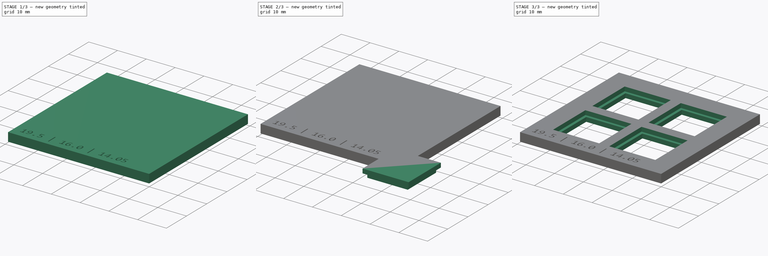
[diagram: build sequence overview — one tinted view per stage of 3, left to right]
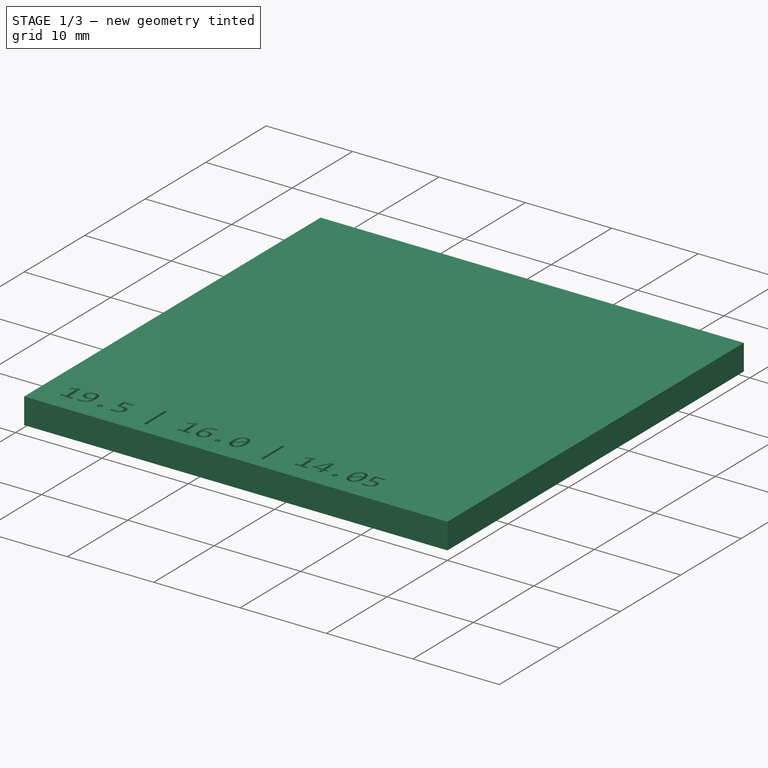
[diagram: stage 1 of 3 — iso view after this stage's code; geometry added in this stage tinted green]
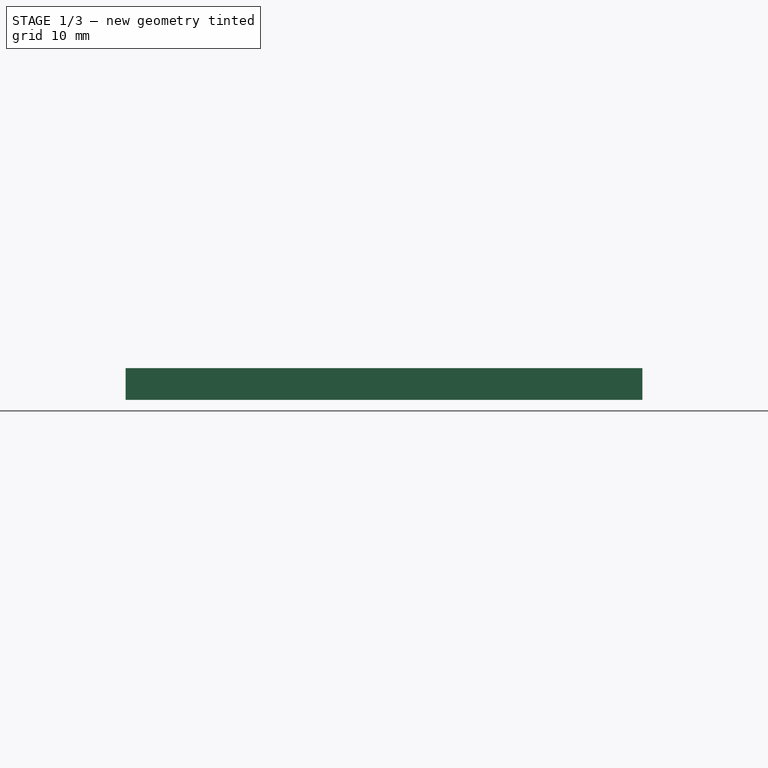
[diagram: stage 1 of 3 — front view after this stage's code; geometry added in this stage tinted green]
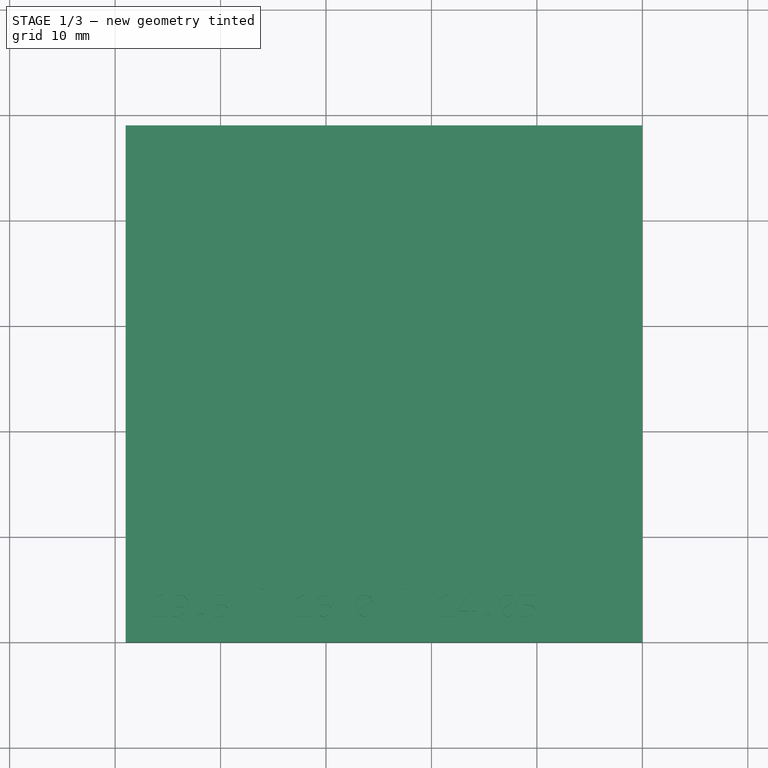
[diagram: stage 1 of 3 — top view after this stage's code; geometry added in this stage tinted green]
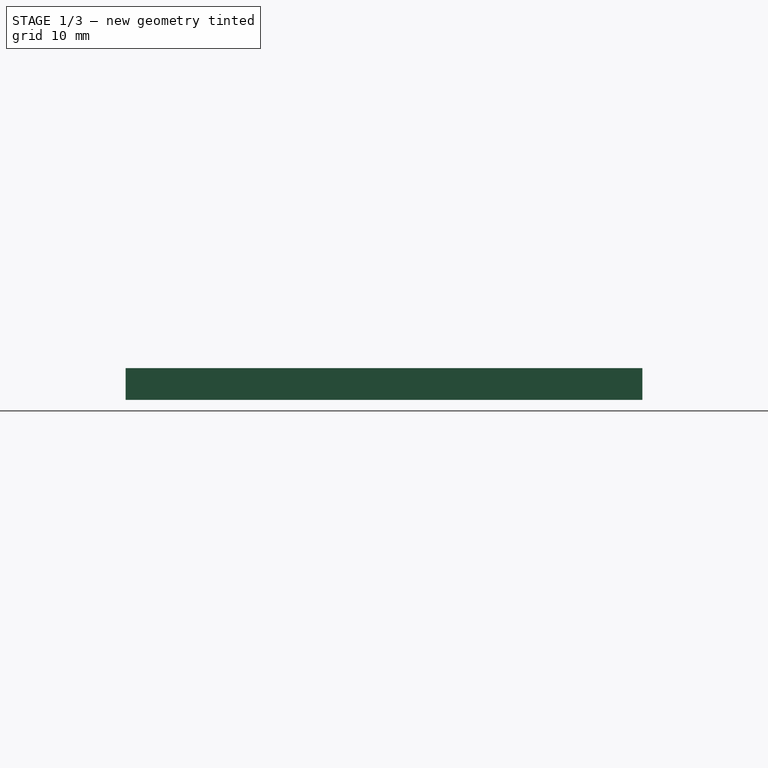
[diagram: stage 1 of 3 — right view after this stage's code; geometry added in this stage tinted green]
FCSTD DOCUMENT  (FreeCAD 1.0R39319 (Git))
Label: test
License: All rights reserved
LicenseURL: https://en.wikipedia.org/wiki/All_rights_reserved
objects: Sketcher::SketchObject×4, PartDesign::Pad×3, App::Part×2, App::VarSet×2, PartDesign::Body×2, Part::Feature×1, Part::FeaturePython×1, Part::Part2DObjectPython×1, PartDesign::Pocket×1, Part::Cut×1
note: 26 computed .brp shape members not serialized (recipe doc carries the construction recipe); baked Part::Feature solids carry a one-line shape summary decoded from their .brp

FEATURE [PartDesign::Pad] Pad
  Direction = (0,0,1)
  Length = 3
  Length2 = 10
  Profile = -> Sketch
  ReferenceAxis = -> Sketch [N_Axis]
  Refine = true
  Suppressed = false
  Type = 0
  expr: Length = <<Frame>>.thickness
FEATURE [Part::Part2DObjectPython] ShapeString  # Draft 2D object (typed FeaturePython)
  FontFile = <path>
  Fuse = false
  Justification = 6
  JustificationReference = 0
  KeepLeftMargin = false
  MakeFace = true
  ObliqueAngle = 0
  Placement = pos=(-46.51,2.18,3) rot=(0,0,1;0rad)
  ScaleToSize = true
  Size = 2.25
  String = 19.5 | 16.0 | 14.05
  Tracking = 0
  expr: .Placement.Base.z = <<Frame>>.thickness
  expr: String = <<%s | %s | %s>> % tuple(<<MXKeys>>.totalSize.Value; <<MXKeys>>.reliefSize.Value; <<MXKeys>>.holeSize.Value)
FEATURE [PartDesign::Pocket] Pocket
  BaseFeature = -> Pad
  Direction = (0,0,-1)
  Length = 1
  Length2 = 5
  Profile = -> ShapeString
  ReferenceAxis = -> ShapeString [N_Axis]
  Refine = true
  Suppressed = false
  Type = 0
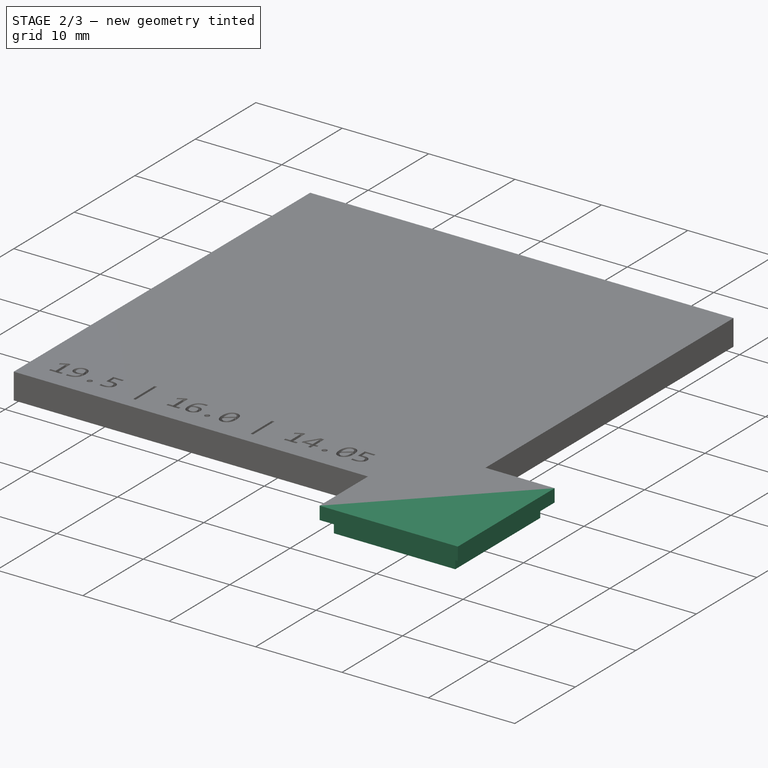
[diagram: stage 2 of 3 — iso view after this stage's code; geometry added in this stage tinted green]
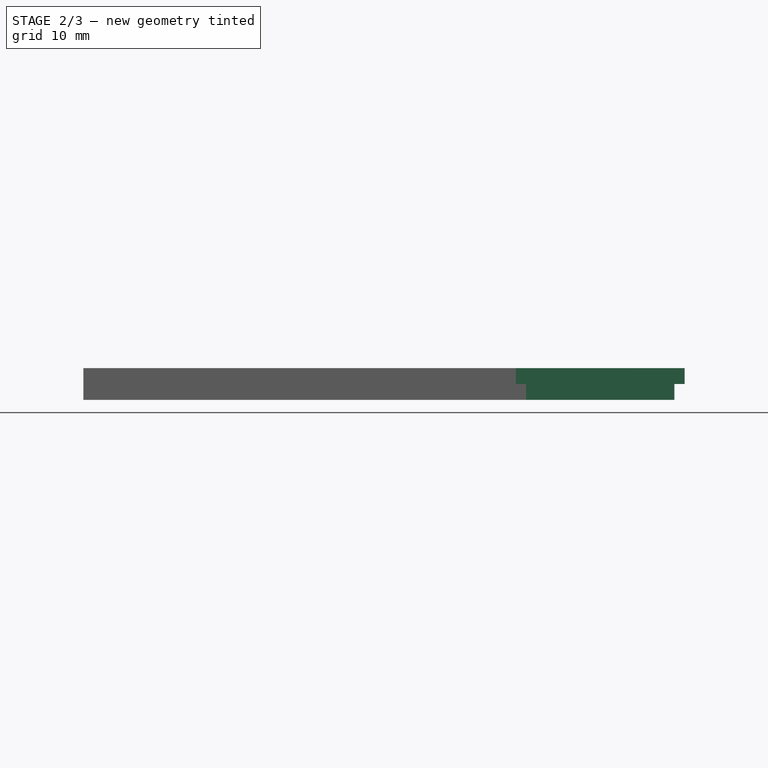
[diagram: stage 2 of 3 — front view after this stage's code; geometry added in this stage tinted green]
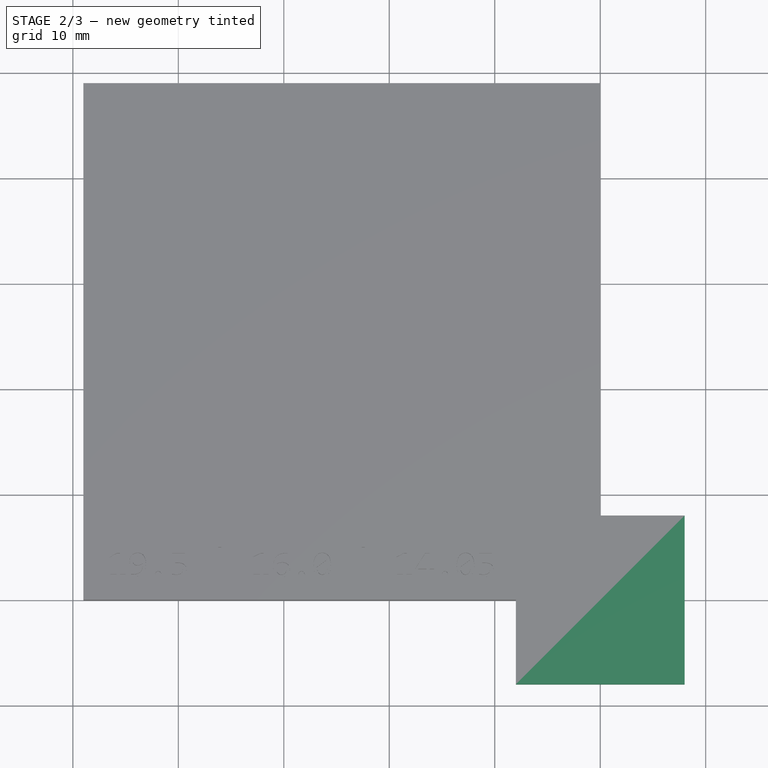
[diagram: stage 2 of 3 — top view after this stage's code; geometry added in this stage tinted green]
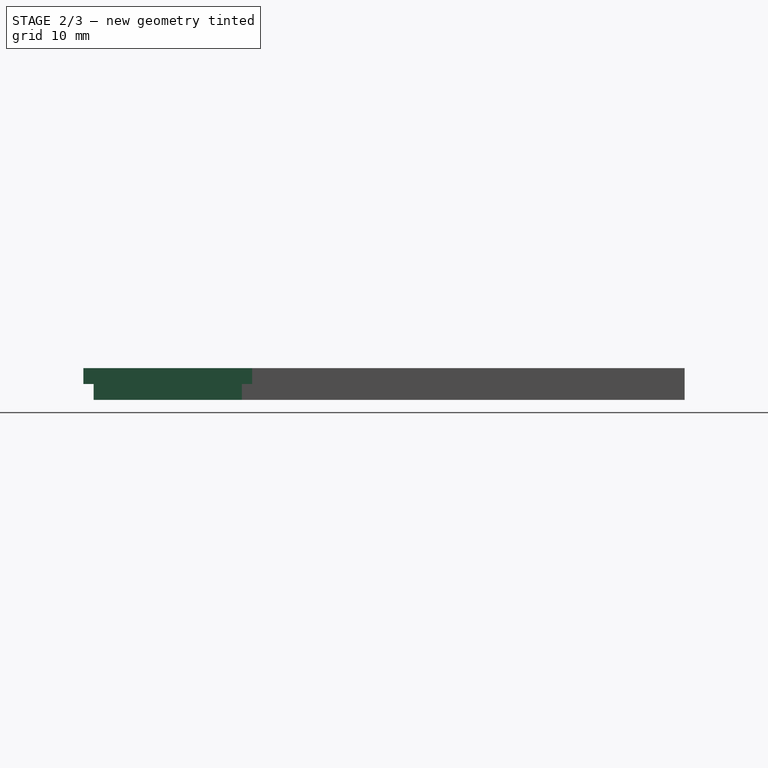
[diagram: stage 2 of 3 — right view after this stage's code; geometry added in this stage tinted green]
FEATURE [Part::Feature] Part__Feature  label="kb42_PCB"
  shape: bbox 162.6 x 106.6 x 1.6 mm, 270 faces (baked)
FEATURE [App::Part] kb42_1  label="kb42 1"
  Group = -> [Part__Feature]
  Origin = -> Origin
  Placement = pos=(-81.7,53.35,-1) rot=(0,1,0;3.14159rad)
FEATURE [Sketcher::SketchObject] Sketch
  ArcFitTolerance = 1e-06
  AttachmentSupport = -> [XY_Plane002]
  FullyConstrained = true
  MakeInternals = false
  MapMode = 5
  expr: Constraints[10] = <<Frame>>.numRows * <<MXKeys>>.totalSize + <<Frame>>.border * 2
  expr: Constraints[9] = <<Frame>>.numCols * <<MXKeys>>.totalSize + <<Frame>>.border * 2
  sketch-geometry (4):
    g0: LineSegment StartX=-49 StartY=49 StartZ=0 EndX=-49 EndY=0 EndZ=0
    g1: LineSegment StartX=-49 StartY=0 StartZ=0 EndX=0 EndY=0 EndZ=0
    g2: LineSegment StartX=0 StartY=0 StartZ=0 EndX=0 EndY=49 EndZ=0
    g3: LineSegment StartX=0 StartY=49 StartZ=0 EndX=-49 EndY=49 EndZ=0
  constraints (11):
    c: Coincident(g0,g1)
    c: Coincident(g1,g2)
    c: Coincident(g2,g3)
    c: Coincident(g3,g0)
    c: Vertical(g0)
    c: Vertical(g2)
    c: Horizontal(g1)
    c: Horizontal(g3)
    c: Coincident(g1,g-1)
    c: DistanceX(g3,g3) = 49
    c: DistanceY(g0,g0) = 49
FEATURE [App::VarSet] VarSet  label="MXKeys"
  cutoutThickness = 1.5
  gap = 3
  holeSize = 14.05
  holeTol = 0.05
  reliefSize = 16
  totalSize = 19.5
  expr: holeSize = 14 mm + holeTol
FEATURE [App::VarSet] VarSet001  label="Frame"
  border = 5
  numCols = 2
  numRows = 2
  thickness = 3
FEATURE [Sketcher::SketchObject] Sketch001
  ArcFitTolerance = 1e-06
  AttachmentSupport = -> [XY_Plane003]
  FullyConstrained = true
  MakeInternals = false
  MapMode = 5
  expr: Constraints[8] = <<MXKeys>>.holeSize
  expr: Constraints[9] = <<MXKeys>>.holeSize
  sketch-geometry (4):
    g0: LineSegment StartX=7.025 StartY=-7.025 StartZ=0 EndX=7.025 EndY=7.025 EndZ=0
    g1: LineSegment StartX=7.025 StartY=7.025 StartZ=0 EndX=-7.025 EndY=7.025 EndZ=0
    g2: LineSegment StartX=-7.025 StartY=7.025 StartZ=0 EndX=-7.025 EndY=-7.025 EndZ=0
    g3: LineSegment StartX=-7.025 StartY=-7.025 StartZ=0 EndX=7.025 EndY=-7.025 EndZ=0
  constraints (11):
    c: Coincident(g0,g1)
    c: Coincident(g1,g2)
    c: Coincident(g2,g3)
    c: Coincident(g3,g0)
    c: Vertical(g0)
    c: Vertical(g2)
    c: Horizontal(g1)
    c: Horizontal(g3)
    c: DistanceX(g1,g1) = 14.05
    c: DistanceY(g2,g2) = 14.05
    c: Symmetric(g1,g0,g-1)
FEATURE [PartDesign::Pad] Pad001
  Direction = (0,0,1)
  Length = 1.5
  Length2 = 10
  Profile = -> Sketch001
  ReferenceAxis = -> Sketch001 [N_Axis]
  Refine = true
  Suppressed = false
  Type = 0
  expr: Length = <<MXKeys>>.cutoutThickness
FEATURE [Sketcher::SketchObject] Sketch002
  ArcFitTolerance = 1e-06
  AttachmentSupport = -> [Pad001]
  FullyConstrained = true
  MakeInternals = false
  MapMode = 5
  Placement = pos=(0,0,1.5) rot=(0,0,1;0rad)
  expr: Constraints[8] = <<MXKeys>>.reliefSize
  expr: Constraints[9] = <<MXKeys>>.reliefSize
  sketch-geometry (4):
    g0: LineSegment StartX=-8 StartY=8 StartZ=0 EndX=-8 EndY=-8 EndZ=0
    g1: LineSegment StartX=-8 StartY=-8 StartZ=0 EndX=8 EndY=-8 EndZ=0
    g2: LineSegment StartX=8 StartY=-8 StartZ=0 EndX=8 EndY=8 EndZ=0
    g3: LineSegment StartX=8 StartY=8 StartZ=0 EndX=-8 EndY=8 EndZ=0
  constraints (11):
    c: Coincident(g0,g1)
    c: Coincident(g1,g2)
    c: Coincident(g2,g3)
    c: Coincident(g3,g0)
    c: Vertical(g0)
    c: Vertical(g2)
    c: Horizontal(g1)
    c: Horizontal(g3)
    c: DistanceX(g3,g3) = 16
    c: DistanceY(g0,g0) = 16
    c: Symmetric(g0,g1,g-1)
FEATURE [PartDesign::Pad] Pad002
  BaseFeature = -> Pad001
  Direction = (0,0,1)
  Length = 1.5
  Length2 = 10
  Profile = -> Sketch002
  ReferenceAxis = -> Sketch002 [N_Axis]
  Refine = true
  Suppressed = false
  Type = 0
  expr: Length = <<Frame>>.thickness - <<MXKeys>>.cutoutThickness
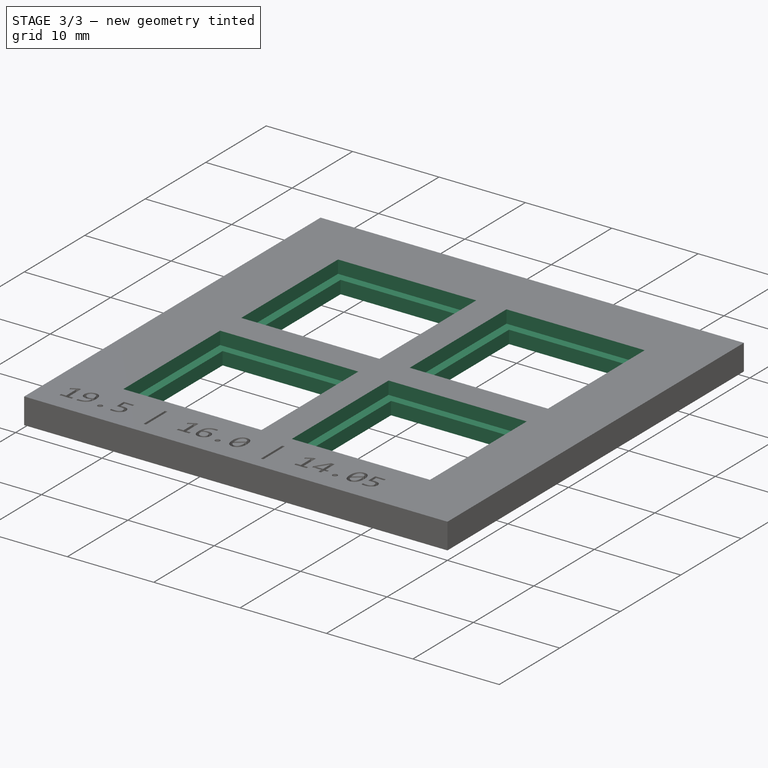
[diagram: stage 3 of 3 — iso view after this stage's code; geometry added in this stage tinted green]
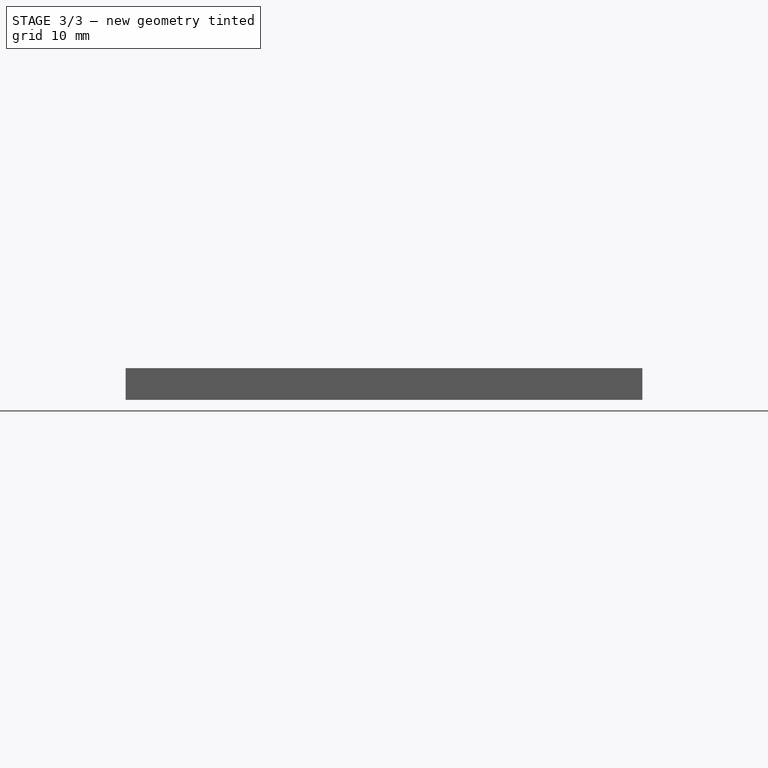
[diagram: stage 3 of 3 — front view after this stage's code; geometry added in this stage tinted green]
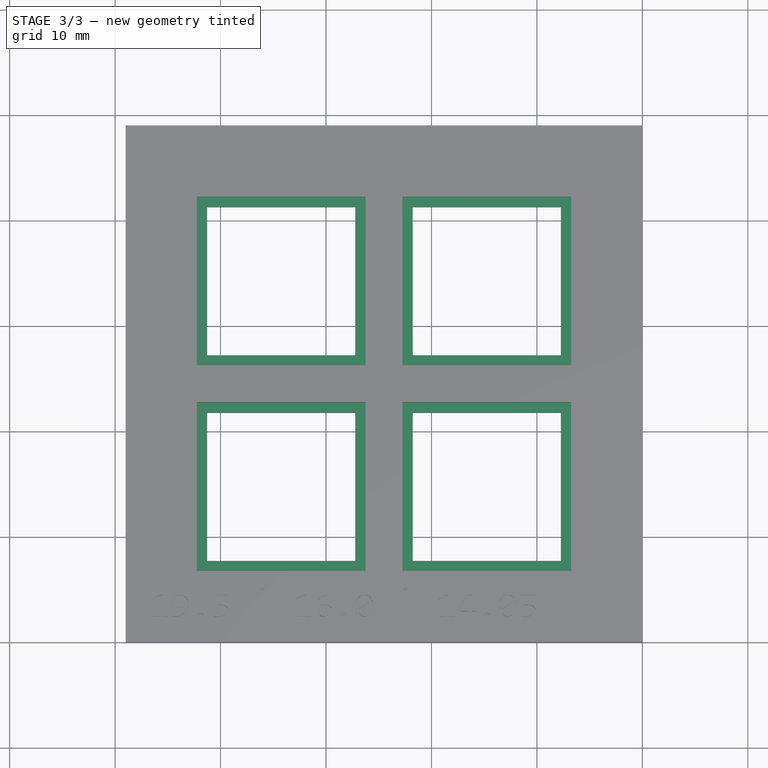
[diagram: stage 3 of 3 — top view after this stage's code; geometry added in this stage tinted green]
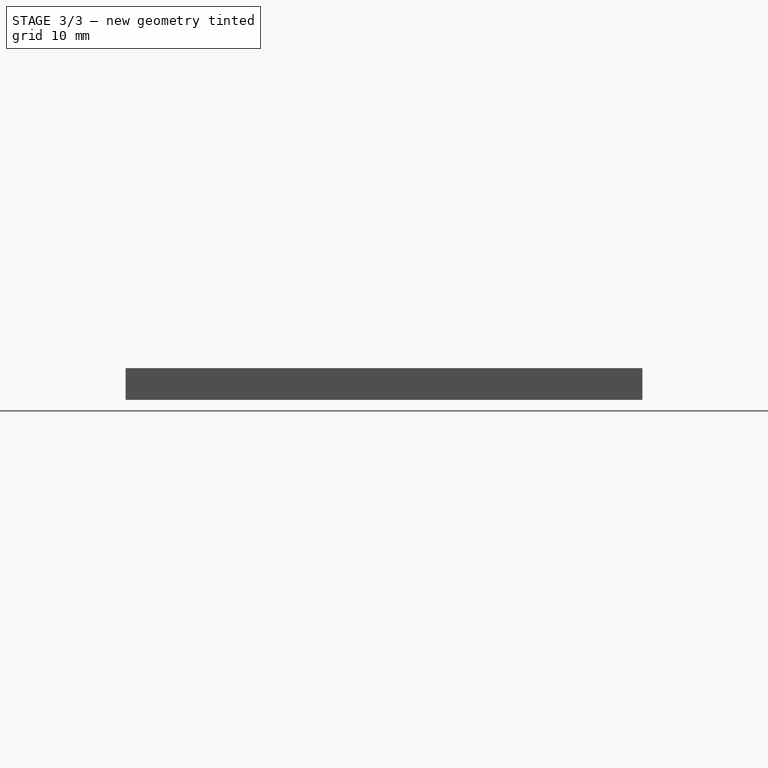
[diagram: stage 3 of 3 — right view after this stage's code; geometry added in this stage tinted green]
FEATURE [PartDesign::Body] Body001  label="SwitchPocket"
  AllowCompound = false
  Group = -> [Sketch001,Pad001,Sketch002,Pad002]
  Origin = -> Origin003
  Tip = -> Pad002
FEATURE [Sketcher::SketchObject] Sketch003  label="Layout"
  ArcFitTolerance = 1e-06
  AttachmentSupport = -> [XY_Plane002]
  FullyConstrained = true
  MakeInternals = false
  MapMode = 5
  expr: Constraints[0] = <<MXKeys>>.totalSize * 0.5 + <<Frame>>.border
  expr: Constraints[1] = <<MXKeys>>.totalSize * 0.5 + <<Frame>>.border
  expr: Constraints[2] = <<MXKeys>>.totalSize
  expr: Constraints[3] = <<MXKeys>>.totalSize
  expr: Constraints[4] = 0.5 * <<MXKeys>>.totalSize + <<Frame>>.border
  expr: Constraints[5] = 0.5 * <<MXKeys>>.totalSize + <<Frame>>.border
  expr: Constraints[6] = <<MXKeys>>.totalSize
  expr: Constraints[7] = <<MXKeys>>.totalSize
  sketch-geometry (4):
    g0: GeomPoint [constr] X=-14.75 Y=14.75 Z=0
    g1: GeomPoint [constr] X=-34.25 Y=14.75 Z=0
    g2: GeomPoint [constr] X=-34.25 Y=34.25 Z=0
    g3: GeomPoint [constr] X=-14.75 Y=34.25 Z=0
  constraints (8):
    c: DistanceX(g0,g-1) = 14.75
    c: DistanceY(g-1,g0) = 14.75
    c: DistanceX(g1,g0) = 19.5
    c: DistanceY(g0,g3) = 19.5
    c: Distance(g3,g-2) = 14.75
    c: Distance(g1,g-1) = 14.75
    c: DistanceY(g1,g2) = 19.5
    c: DistanceX(g2,g3) = 19.5
FEATURE [Part::FeaturePython] PointArray  # Draft array (typed FeaturePython)
  Base = -> Body001
  Count = 4
  Fuse = false
  PointObject = -> Sketch003
FEATURE [PartDesign::Body] Body
  AllowCompound = false
  Group = -> [Sketch,Pad,ShapeString,Pocket]
  Origin = -> Origin002
  Tip = -> Pocket
FEATURE [Part::Cut] Cut
  Base = -> Body
  Refine = true
  Tool = -> PointArray
FEATURE [App::Part] Part
  Group = -> [VarSet001,VarSet,Body001,Body,PointArray,Sketch003,Cut]
  Origin = -> Origin001
note: 1 file-system path scrubbed to <path> (originals preserved in the JSON sidecar)
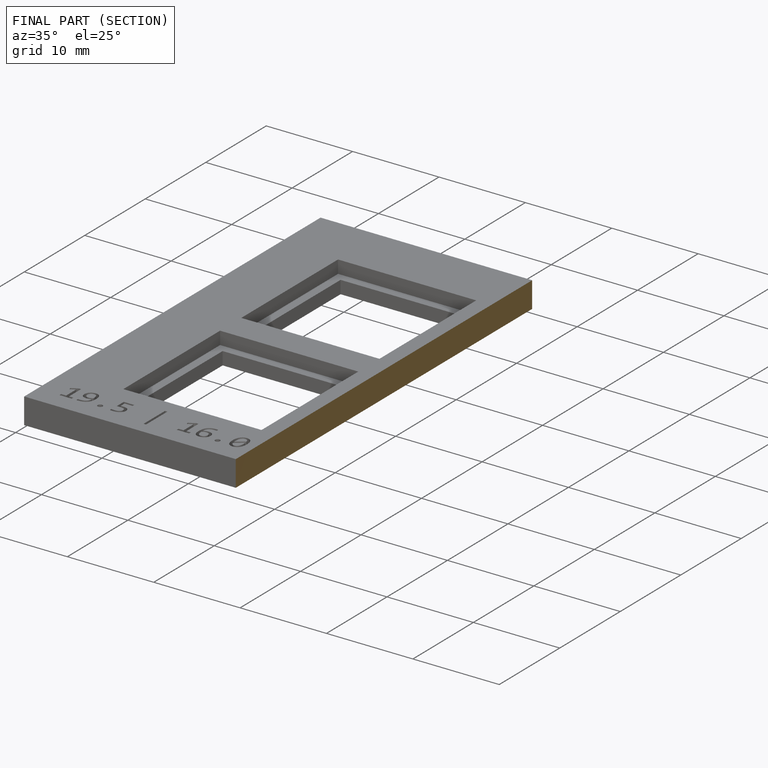
[diagram: finished part — half-section view (interior)]
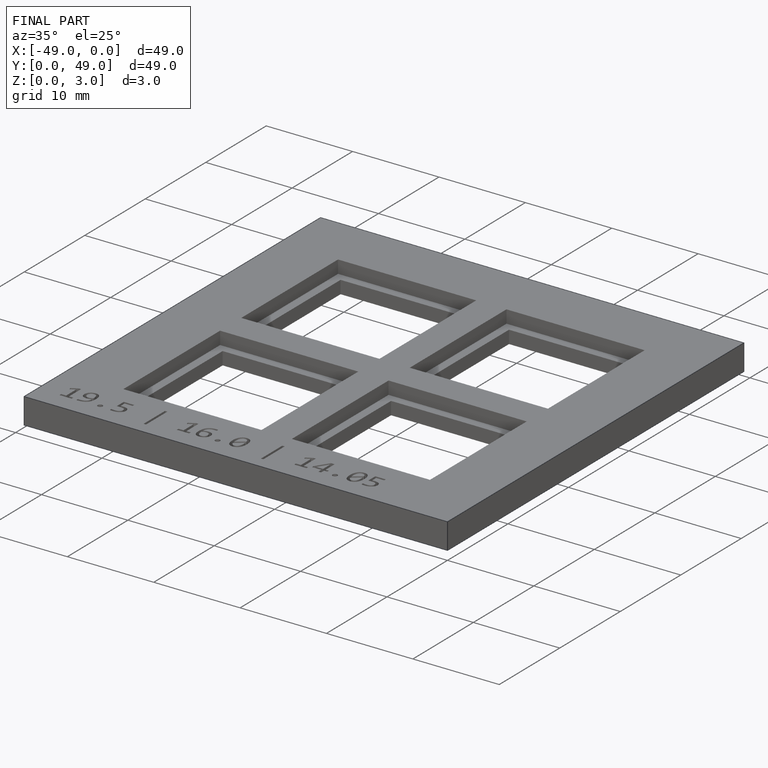
[diagram: finished part — iso view with bounding-box wireframe]
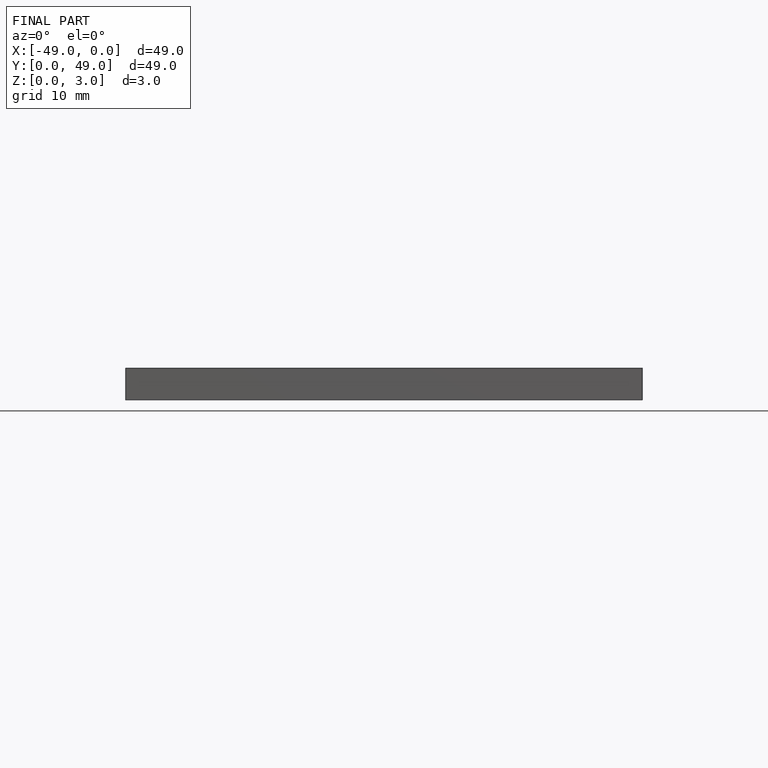
[diagram: finished part — front view with bounding-box wireframe]
